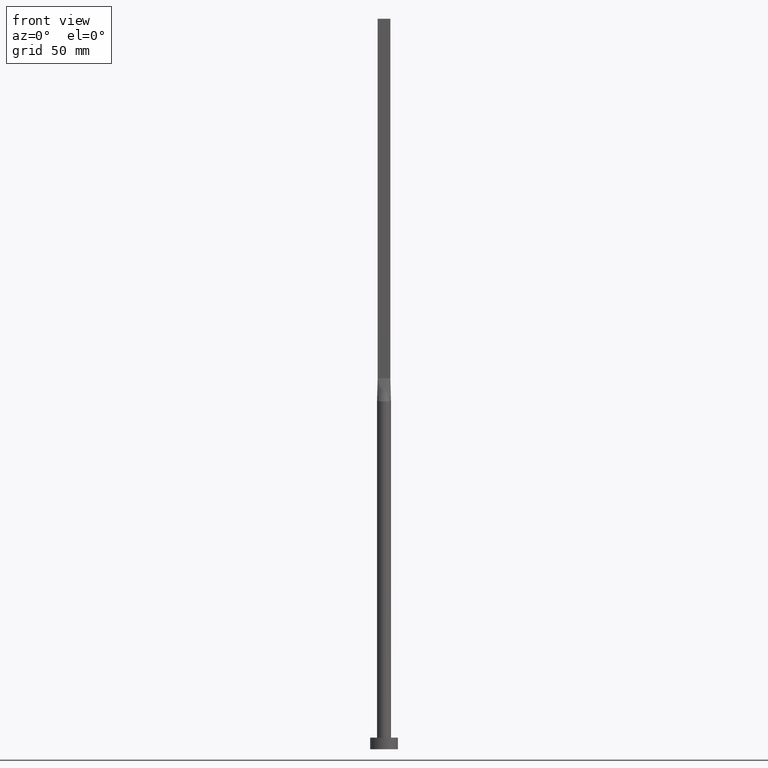
[diagram: clean part render]
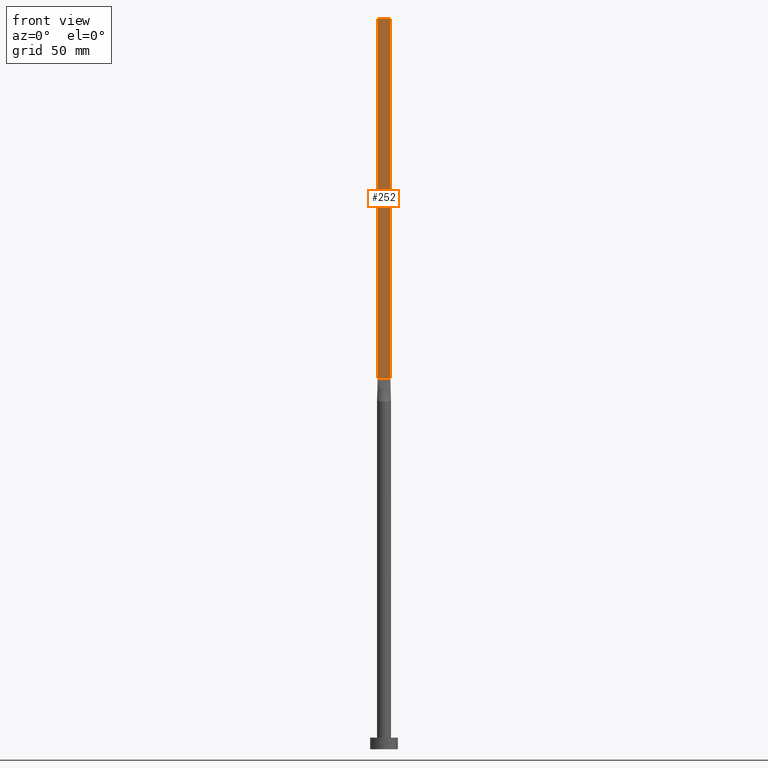
[diagram: same view with one face highlighted and labeled with its STEP entity id]
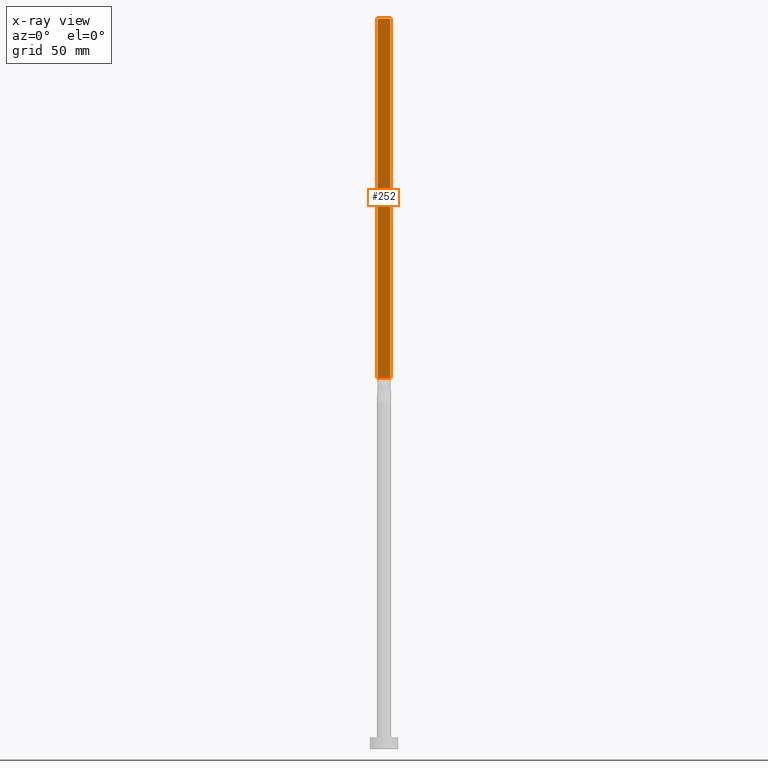
[diagram: x-ray of the same camera — body ghosted, the highlighted face saturated]
A machine part, front view. The second image highlights one B-rep face of the part: STEP entity #252.
The next image is the same camera in x-ray: the body ghosted, the highlighted face saturated — about 0% of this face is hidden behind the body in this view.
In plain terms, the highlighted planar face has unit normal (0, 1, -0).
Its self-contained STEP definition (entity closure, byte-faithful):
#25 = LINE ( 'NONE', #521, #152 ) ;
#29 = CARTESIAN_POINT ( 'NONE',  ( -2.750000000000000000, -0.5999999999999994227, 315.0000000000000000 ) ) ;
#30 = ORIENTED_EDGE ( 'NONE', *, *, #502, .F. ) ;
#33 = VECTOR ( 'NONE', #245, 1000.000000000000000 ) ;
#35 = FACE_OUTER_BOUND ( 'NONE', #279, .T. ) ;
#42 = VERTEX_POINT ( 'NONE', #335 ) ;
#51 = AXIS2_PLACEMENT_3D ( 'NONE', #29, #386, #251 ) ;
#59 = CARTESIAN_POINT ( 'NONE',  ( 2.750000000000000000, -0.5999999999999997558, 315.0000000000000000 ) ) ;
#77 = EDGE_CURVE ( 'NONE', #85, #166, #291, .T. ) ;
#85 = VERTEX_POINT ( 'NONE', #284 ) ;
#119 = CARTESIAN_POINT ( 'NONE',  ( 2.750000000000000000, -0.5999999999999997558, 160.0000000000000000 ) ) ;
#123 = EDGE_CURVE ( 'NONE', #42, #166, #197, .T. ) ;
#131 = VERTEX_POINT ( 'NONE', #379 ) ;
#138 = ORIENTED_EDGE ( 'NONE', *, *, #77, .T. ) ;
#152 = VECTOR ( 'NONE', #435, 1000.000000000000000 ) ;
#165 = VECTOR ( 'NONE', #218, 1000.000000000000000 ) ;
#166 = VERTEX_POINT ( 'NONE', #119 ) ;
#197 = LINE ( 'NONE', #59, #33 ) ;
#218 = DIRECTION ( 'NONE',  ( -0.000000000000000000, -0.000000000000000000, -1.000000000000000000 ) ) ;
#245 = DIRECTION ( 'NONE',  ( -0.000000000000000000, -0.000000000000000000, -1.000000000000000000 ) ) ;
#251 = DIRECTION ( 'NONE',  ( -1.000000000000000000, 5.913830031739115543E-17, 0.000000000000000000 ) ) ;
#252 = ADVANCED_FACE ( 'NONE', ( #35 ), #388, .F. ) ;
#260 = EDGE_CURVE ( 'NONE', #131, #85, #563, .T. ) ;
#279 = EDGE_LOOP ( 'NONE', ( #138, #301, #30, #570 ) ) ;
#284 = CARTESIAN_POINT ( 'NONE',  ( -2.750000000000000000, -0.5999999999999994227, 160.0000000000000000 ) ) ;
#291 = LINE ( 'NONE', #470, #309 ) ;
#301 = ORIENTED_EDGE ( 'NONE', *, *, #123, .F. ) ;
#309 = VECTOR ( 'NONE', #384, 1000.000000000000000 ) ;
#335 = CARTESIAN_POINT ( 'NONE',  ( 2.750000000000000000, -0.5999999999999997558, 315.0000000000000000 ) ) ;
#351 = CARTESIAN_POINT ( 'NONE',  ( -2.750000000000000000, -0.5999999999999994227, 315.0000000000000000 ) ) ;
#379 = CARTESIAN_POINT ( 'NONE',  ( -2.750000000000000000, -0.5999999999999994227, 315.0000000000000000 ) ) ;
#384 = DIRECTION ( 'NONE',  ( 1.000000000000000000, -5.913830031739115543E-17, 0.000000000000000000 ) ) ;
#386 = DIRECTION ( 'NONE',  ( 5.913830031739115543E-17, 1.000000000000000000, -0.000000000000000000 ) ) ;
#388 = PLANE ( 'NONE',  #51 ) ;
#435 = DIRECTION ( 'NONE',  ( 1.000000000000000000, -5.913830031739115543E-17, 0.000000000000000000 ) ) ;
#470 = CARTESIAN_POINT ( 'NONE',  ( -2.750000000000000000, -0.5999999999999994227, 160.0000000000000000 ) ) ;
#502 = EDGE_CURVE ( 'NONE', #131, #42, #25, .T. ) ;
#521 = CARTESIAN_POINT ( 'NONE',  ( -2.750000000000000000, -0.5999999999999994227, 315.0000000000000000 ) ) ;
#563 = LINE ( 'NONE', #351, #165 ) ;
#570 = ORIENTED_EDGE ( 'NONE', *, *, #260, .T. ) ;